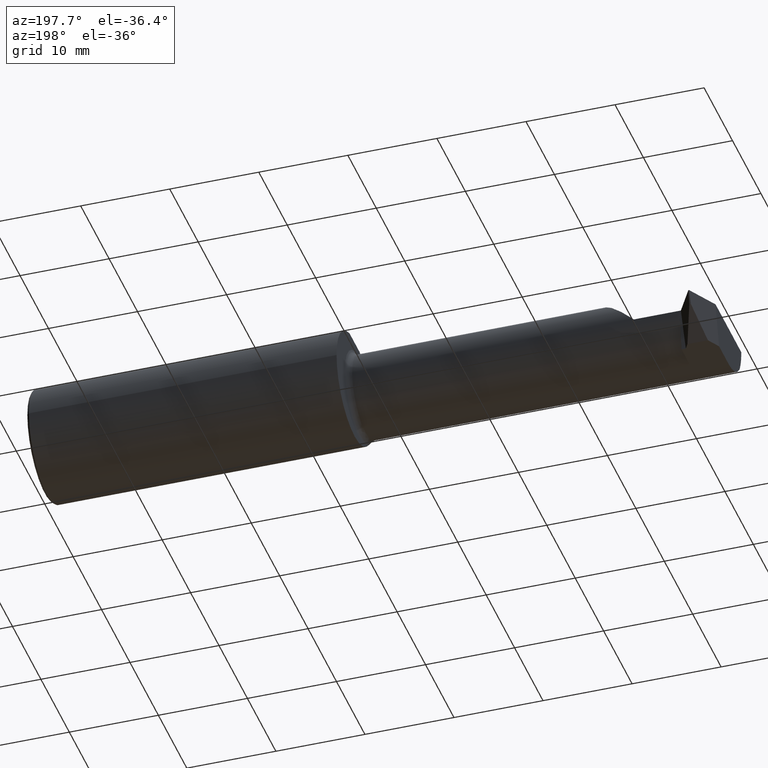
[diagram: clean part render]
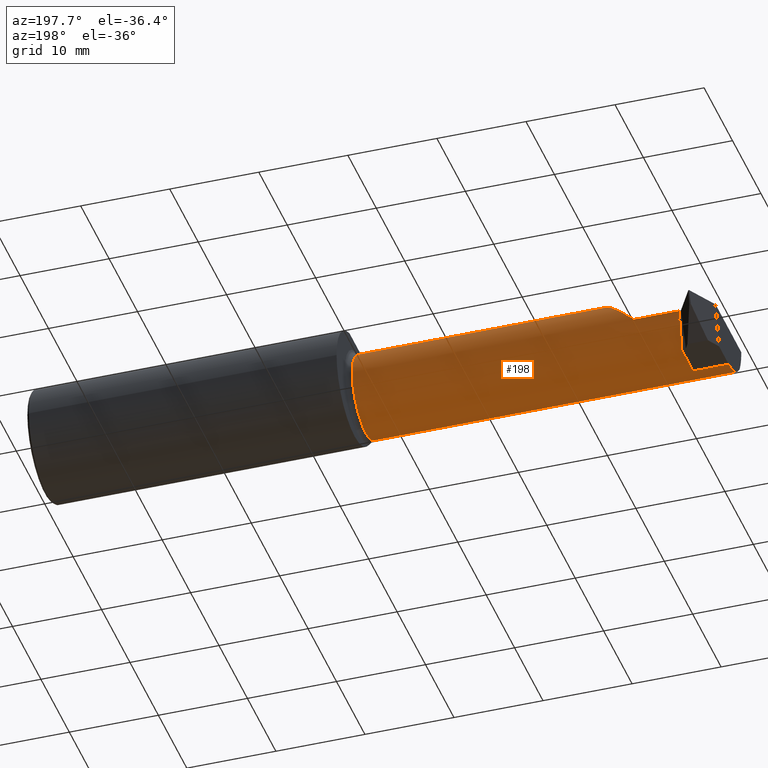
[diagram: same view with one face highlighted and labeled with its STEP entity id]
A machine part, auxiliary view. The second image highlights one B-rep face of the part: STEP entity #198.
In plain terms, the highlighted cylindrical surface (partial cylindrical patch) has radius 4.699 mm, axis along (-1, 0, -0).
Its self-contained STEP definition (entity closure, byte-faithful):
#12 = VERTEX_POINT ( 'NONE', #44 ) ;
#15 = FACE_OUTER_BOUND ( 'NONE', #64, .T. ) ;
#19 = VECTOR ( 'NONE', #492, 39.37007874015748143 ) ;
#22 = CARTESIAN_POINT ( 'NONE',  ( -2.840467636289440545, 0.1101500000000000812, -0.01619057209964420985 ) ) ;
#23 = VERTEX_POINT ( 'NONE', #108 ) ;
#34 = DIRECTION ( 'NONE',  ( 0.000000000000000000, -1.000000000000000000, 0.000000000000000000 ) ) ;
#35 = AXIS2_PLACEMENT_3D ( 'NONE', #284, #527, #757 ) ;
#44 = CARTESIAN_POINT ( 'NONE',  ( -1.395000000000000240, -0.2258019038076137797, -0.1069510296203694671 ) ) ;
#45 = CARTESIAN_POINT ( 'NONE',  ( -2.842599165543727935, 0.1038462778634775124, -0.04788152334396636456 ) ) ;
#63 = CARTESIAN_POINT ( 'NONE',  ( -2.118799582771864198, -0.2258019038076136131, 0.1069510296203693839 ) ) ;
#64 = EDGE_LOOP ( 'NONE', ( #539, #381, #323, #278, #104, #70, #298, #283, #550, #685 ) ) ;
#69 = DIRECTION ( 'NONE',  ( 1.000000000000000000, -9.422009876951564852E-18, 0.000000000000000000 ) ) ;
#70 = ORIENTED_EDGE ( 'NONE', *, *, #634, .F. ) ;
#76 = CARTESIAN_POINT ( 'NONE',  ( -3.000000000000000444, 0.1101500000000000812, 0.000000000000000000 ) ) ;
#79 = VECTOR ( 'NONE', #69, 39.37007874015748143 ) ;
#87 = EDGE_CURVE ( 'NONE', #215, #477, #661, .T. ) ;
#98 = CIRCLE ( 'NONE', #404, 0.1850000000000004141 ) ;
#104 = ORIENTED_EDGE ( 'NONE', *, *, #743, .T. ) ;
#108 = CARTESIAN_POINT ( 'NONE',  ( -3.000000000000000444, -0.07485000000000015252, -0.1850000000000000810 ) ) ;
#110 =( BOUNDED_CURVE ( )  B_SPLINE_CURVE ( 3, ( #318, #22, #365, #191 ),
 .UNSPECIFIED., .F., .T. ) 
 B_SPLINE_CURVE_WITH_KNOTS ( ( 4, 4 ),
 ( 1.570796326794896780, 1.832595714594120739 ),
 .UNSPECIFIED. ) 
 CURVE ( )  GEOMETRIC_REPRESENTATION_ITEM ( )  RATIONAL_B_SPLINE_CURVE ( ( 1.000000000000000000, 0.9942965742492037018, 0.9942965742492037018, 1.000000000000000000 ) ) 
 REPRESENTATION_ITEM ( '' )  );
#113 = EDGE_CURVE ( 'NONE', #215, #237, #110, .T. ) ;
#152 = CARTESIAN_POINT ( 'NONE',  ( -1.395000000000000240, -0.2258019038076137797, 0.1069510296203694810 ) ) ;
#173 = EDGE_CURVE ( 'NONE', #302, #240, #260, .T. ) ;
#186 = CYLINDRICAL_SURFACE ( 'NONE', #268, 0.1850000000000002753 ) ;
#191 = CARTESIAN_POINT ( 'NONE',  ( -2.836295443407202743, 0.1038462778634750006, -0.04788152334397974969 ) ) ;
#197 = AXIS2_PLACEMENT_3D ( 'NONE', #566, #264, #747 ) ;
#198 = ADVANCED_FACE ( 'NONE', ( #15 ), #186, .T. ) ;
#203 =( BOUNDED_CURVE ( )  B_SPLINE_CURVE ( 3, ( #760, #704, #395, #340 ),
 .UNSPECIFIED., .F., .F. ) 
 B_SPLINE_CURVE_WITH_KNOTS ( ( 4, 4 ),
 ( 1.570796326794896558, 4.095973986638924202 ),
 .UNSPECIFIED. ) 
 CURVE ( )  GEOMETRIC_REPRESENTATION_ITEM ( )  RATIONAL_B_SPLINE_CURVE ( ( 1.000000000000000000, 0.5355673909124378795, 0.5355673909124378795, 1.000000000000000000 ) ) 
 REPRESENTATION_ITEM ( '' )  );
#207 = CARTESIAN_POINT ( 'NONE',  ( -2.842599165543727935, 0.1101499999999998453, 0.000000000000000000 ) ) ;
#215 = VERTEX_POINT ( 'NONE', #207 ) ;
#227 = DIRECTION ( 'NONE',  ( 1.000000000000000000, -9.422009876951564852E-18, 0.000000000000000000 ) ) ;
#231 = EDGE_CURVE ( 'NONE', #725, #444, #739, .T. ) ;
#237 = VERTEX_POINT ( 'NONE', #513 ) ;
#240 = VERTEX_POINT ( 'NONE', #697 ) ;
#260 = LINE ( 'NONE', #63, #643 ) ;
#264 = DIRECTION ( 'NONE',  ( -1.000000000000000000, 9.422009876951564852E-18, -0.000000000000000000 ) ) ;
#268 = AXIS2_PLACEMENT_3D ( 'NONE', #545, #731, #549 ) ;
#272 = DIRECTION ( 'NONE',  ( -1.000000000000000000, 9.422009876951564852E-18, -0.000000000000000000 ) ) ;
#278 = ORIENTED_EDGE ( 'NONE', *, *, #173, .F. ) ;
#283 = ORIENTED_EDGE ( 'NONE', *, *, #473, .F. ) ;
#284 = CARTESIAN_POINT ( 'NONE',  ( -3.000000000000000444, -0.07485000000000019416, 0.000000000000000000 ) ) ;
#285 = EDGE_CURVE ( 'NONE', #237, #725, #741, .T. ) ;
#296 = VECTOR ( 'NONE', #227, 39.37007874015748143 ) ;
#298 = ORIENTED_EDGE ( 'NONE', *, *, #714, .T. ) ;
#302 = VERTEX_POINT ( 'NONE', #152 ) ;
#318 = CARTESIAN_POINT ( 'NONE',  ( -2.842599165543727935, 0.1101499999999998453, 0.000000000000000000 ) ) ;
#323 = ORIENTED_EDGE ( 'NONE', *, *, #692, .T. ) ;
#340 = CARTESIAN_POINT ( 'NONE',  ( -2.533048970379630394, -0.2258019038076140295, 0.1069510296203686622 ) ) ;
#352 = CARTESIAN_POINT ( 'NONE',  ( -2.842599165543727935, -0.07485000000000015252, -0.1850000000000000810 ) ) ;
#365 = CARTESIAN_POINT ( 'NONE',  ( -2.838354342563409904, 0.1080367062739687467, -0.03224263161053853022 ) ) ;
#381 = ORIENTED_EDGE ( 'NONE', *, *, #87, .T. ) ;
#395 = CARTESIAN_POINT ( 'NONE',  ( -2.354000382304568539, -0.09894407450122372216, 0.2859996176954284763 ) ) ;
#404 = AXIS2_PLACEMENT_3D ( 'NONE', #411, #749, #34 ) ;
#409 = LINE ( 'NONE', #352, #19 ) ;
#411 = CARTESIAN_POINT ( 'NONE',  ( -1.395000000000000240, -0.07485000000000020803, 0.000000000000000000 ) ) ;
#444 = VERTEX_POINT ( 'NONE', #657 ) ;
#458 = CARTESIAN_POINT ( 'NONE',  ( -2.118799582771864198, -0.2258019038076136131, -0.1069510296203693839 ) ) ;
#473 = EDGE_CURVE ( 'NONE', #444, #23, #409, .T. ) ;
#477 = VERTEX_POINT ( 'NONE', #497 ) ;
#492 = DIRECTION ( 'NONE',  ( -1.000000000000000000, -1.553500558300393113E-17, -0.000000000000000000 ) ) ;
#497 = CARTESIAN_POINT ( 'NONE',  ( -2.640000000000000124, 0.1101500000000001228, 0.000000000000000000 ) ) ;
#506 = CIRCLE ( 'NONE', #35, 0.1850000000000000810 ) ;
#513 = CARTESIAN_POINT ( 'NONE',  ( -2.836295443407202743, 0.1038462778634750006, -0.04788152334397974969 ) ) ;
#527 = DIRECTION ( 'NONE',  ( 1.000000000000000000, 1.553500558300393113E-17, -0.000000000000000000 ) ) ;
#539 = ORIENTED_EDGE ( 'NONE', *, *, #113, .F. ) ;
#545 = CARTESIAN_POINT ( 'NONE',  ( -3.000000000000000444, -0.07485000000000019416, 0.000000000000000000 ) ) ;
#549 = DIRECTION ( 'NONE',  ( 0.000000000000000000, -1.000000000000000000, 0.000000000000000000 ) ) ;
#550 = ORIENTED_EDGE ( 'NONE', *, *, #231, .F. ) ;
#566 = CARTESIAN_POINT ( 'NONE',  ( -2.842599165543727935, -0.07485000000000019416, 0.000000000000000000 ) ) ;
#634 = EDGE_CURVE ( 'NONE', #748, #12, #699, .T. ) ;
#643 = VECTOR ( 'NONE', #733, 39.37007874015748143 ) ;
#657 = CARTESIAN_POINT ( 'NONE',  ( -2.842599165543727935, -0.07485000000000015252, -0.1850000000000000810 ) ) ;
#661 = LINE ( 'NONE', #76, #79 ) ;
#685 = ORIENTED_EDGE ( 'NONE', *, *, #285, .F. ) ;
#692 = EDGE_CURVE ( 'NONE', #477, #240, #203, .T. ) ;
#697 = CARTESIAN_POINT ( 'NONE',  ( -2.533048970379630394, -0.2258019038076140295, 0.1069510296203686622 ) ) ;
#699 = LINE ( 'NONE', #458, #296 ) ;
#704 = CARTESIAN_POINT ( 'NONE',  ( -2.420565942142058002, 0.1101500000000000673, 0.2194340578579397627 ) ) ;
#714 = EDGE_CURVE ( 'NONE', #748, #23, #506, .T. ) ;
#721 = CARTESIAN_POINT ( 'NONE',  ( -3.000000000000000444, -0.2258019038076144458, -0.1069510296203678851 ) ) ;
#725 = VERTEX_POINT ( 'NONE', #45 ) ;
#728 = VECTOR ( 'NONE', #272, 39.37007874015748143 ) ;
#731 = DIRECTION ( 'NONE',  ( -1.000000000000000000, 9.422009876951564852E-18, -0.000000000000000000 ) ) ;
#733 = DIRECTION ( 'NONE',  ( -1.000000000000000000, 9.422009876951564852E-18, -0.000000000000000000 ) ) ;
#739 = CIRCLE ( 'NONE', #197, 0.1850000000000000810 ) ;
#741 = LINE ( 'NONE', #751, #728 ) ;
#743 = EDGE_CURVE ( 'NONE', #302, #12, #98, .T. ) ;
#747 = DIRECTION ( 'NONE',  ( 0.000000000000000000, -1.000000000000000000, 0.000000000000000000 ) ) ;
#748 = VERTEX_POINT ( 'NONE', #721 ) ;
#749 = DIRECTION ( 'NONE',  ( -1.000000000000000000, 9.422009876951564852E-18, -0.000000000000000000 ) ) ;
#751 = CARTESIAN_POINT ( 'NONE',  ( -3.000000000000001776, 0.1038462778634741818, -0.04788152334397961785 ) ) ;
#757 = DIRECTION ( 'NONE',  ( 0.000000000000000000, -1.000000000000000000, 0.000000000000000000 ) ) ;
#760 = CARTESIAN_POINT ( 'NONE',  ( -2.640000000000000124, 0.1101500000000001228, 0.000000000000000000 ) ) ;